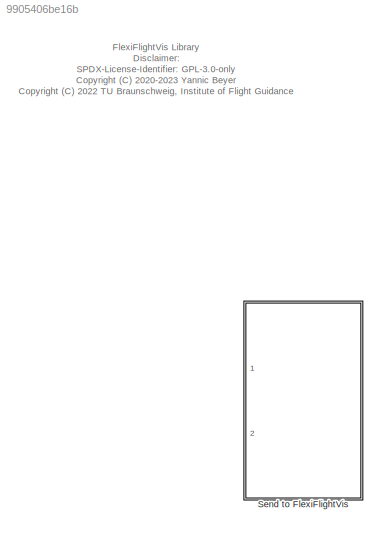
MODEL slx_9905406be16b
KIND library
CONFIG AbsTol = auto
CONFIG EnableMultiTasking = off
CONFIG FixedStep = auto
CONFIG MaxStep = auto
CONFIG MinStep = auto
CONFIG RelTol = 1e-3
CONFIG SampleTimeConstraint = Unconstrained
CONFIG Solver = VariableStepAuto
CONFIG SolverName = VariableStepAuto
CONFIG StartTime = 0.0
CONFIG StopTime = 10.0
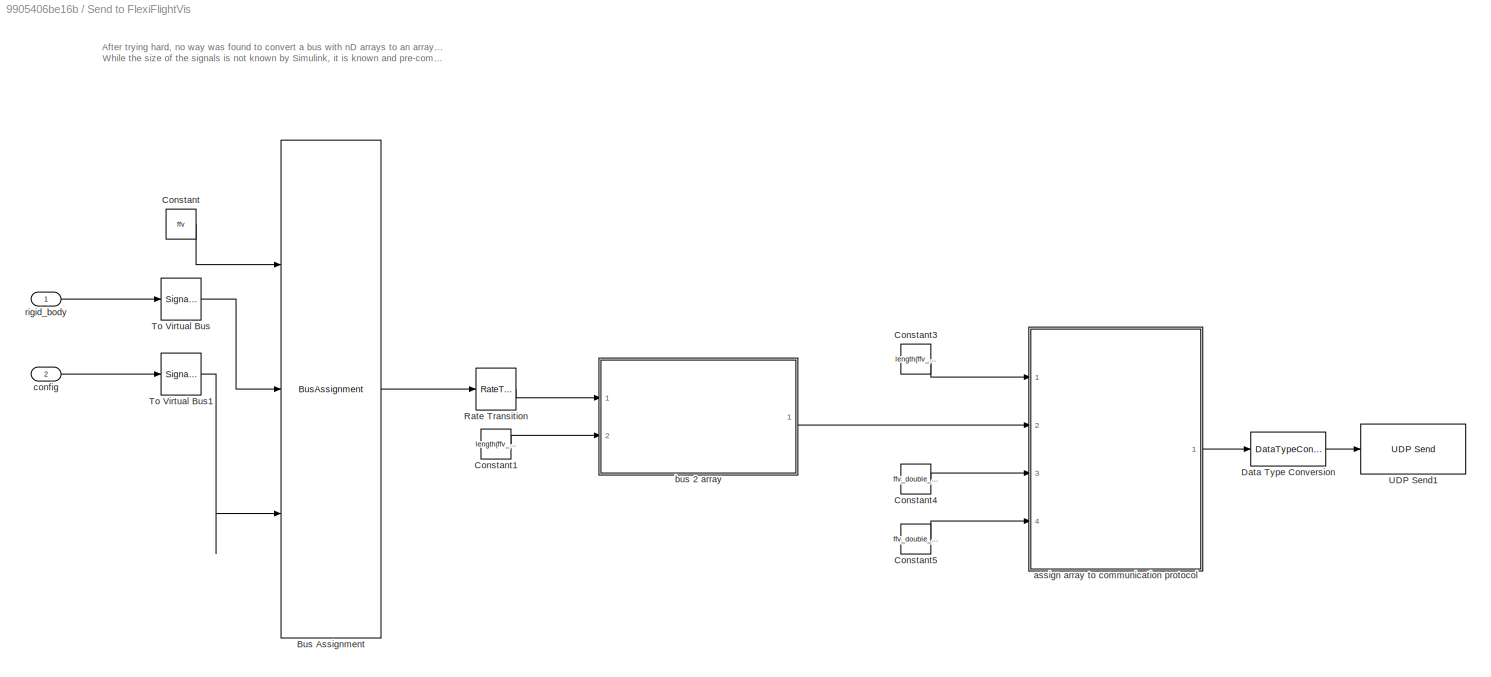
BLOCK [SubSystem] Send to FlexiFlightVis
  Ports = [2]
  RequestExecContextInheritance = off
BLOCK [BusAssignment] Send to FlexiFlightVis/Bus Assignment
  AssignedSignals = rigid_body,config
  Ports = [3, 1]
BLOCK [Constant] Send to FlexiFlightVis/Constant
  OutDataTypeStr = Bus: ffv_bus
  Value = ffv
BLOCK [Constant] Send to FlexiFlightVis/Constant1
  Value = length(ffv_double_array)-length(ffv_double_idx)
BLOCK [Constant] Send to FlexiFlightVis/Constant3
  Value = length(ffv_double_array)
BLOCK [Constant] Send to FlexiFlightVis/Constant4
  Value = ffv_double_array
BLOCK [Constant] Send to FlexiFlightVis/Constant5
  Value = ffv_double_idx
BLOCK [DataTypeConversion] Send to FlexiFlightVis/Data Type Conversion
  OutDataTypeStr = single
  RndMeth = Floor
  SaturateOnIntegerOverflow = off
BLOCK [RateTransition] Send to FlexiFlightVis/Rate Transition
  OutPortSampleTime = sample_time
BLOCK [SignalConversion] Send to FlexiFlightVis/To Virtual Bus
  ConversionOutput = Virtual bus
  OverrideOpt = off
BLOCK [SignalConversion] Send to FlexiFlightVis/To Virtual Bus1
  ConversionOutput = Virtual bus
  OverrideOpt = off
BLOCK [Reference] Send to FlexiFlightVis/UDP Send1  REF=dspnetwork/UDP Send
  Ports = [1]
  SourceBlock = dspnetwork/UDP Send
  SourceProductBaseCode = SL
  SourceProductName = Simulink
  SourceType = UDP Send
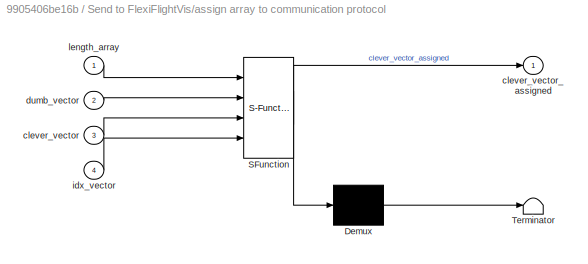
BLOCK [SubSystem] Send to FlexiFlightVis/assign array to communication protocol
  ErrorFcn = Stateflow.Translate.translate
  PermitHierarchicalResolution = ExplicitOnly
  Ports = [4, 1]
  RequestExecContextInheritance = off
  SFBlockType = MATLAB Function
  TreatAsAtomicUnit = on
BLOCK [Demux] Send to FlexiFlightVis/assign array to communication protocol/ Demux 
  Outputs = 1
  Ports = [1, 1]
BLOCK [S-Function] Send to FlexiFlightVis/assign array to communication protocol/ SFunction 
  EnableBusSupport = off
  FunctionName = sf_sfun
  PortCounts = [4 2]
  Ports = [4, 2]
  SFcnIsStateOwnerBlock = off
  SFunctionDeploymentMode = off
  Tag = Stateflow S-Function flexiFlightVis_lib 2
BLOCK [Terminator] Send to FlexiFlightVis/assign array to communication protocol/ Terminator 
BLOCK [Inport] Send to FlexiFlightVis/assign array to communication protocol/clever_vector
  IconDisplay = Port number
  Port = 3
BLOCK [Outport] Send to FlexiFlightVis/assign array to communication protocol/clever_vector_assigned
  IconDisplay = Port number
BLOCK [Inport] Send to FlexiFlightVis/assign array to communication protocol/dumb_vector
  IconDisplay = Port number
  Port = 2
BLOCK [Inport] Send to FlexiFlightVis/assign array to communication protocol/idx_vector
  IconDisplay = Port number
  Port = 4
BLOCK [Inport] Send to FlexiFlightVis/assign array to communication protocol/length_array
  IconDisplay = Port number
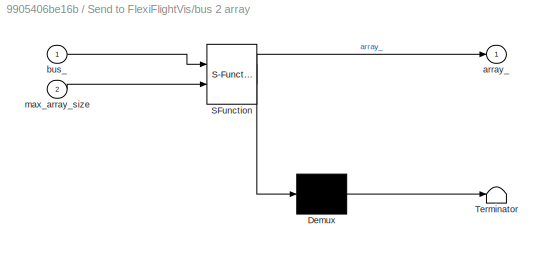
BLOCK [SubSystem] Send to FlexiFlightVis/bus 2 array
  ErrorFcn = Stateflow.Translate.translate
  PermitHierarchicalResolution = ExplicitOnly
  Ports = [2, 1]
  RequestExecContextInheritance = off
  SFBlockType = MATLAB Function
  TreatAsAtomicUnit = on
BLOCK [Demux] Send to FlexiFlightVis/bus 2 array/ Demux 
  Outputs = 1
  Ports = [1, 1]
BLOCK [S-Function] Send to FlexiFlightVis/bus 2 array/ SFunction 
  EnableBusSupport = off
  FunctionName = sf_sfun
  PortCounts = [2 2]
  Ports = [2, 2]
  SFcnIsStateOwnerBlock = off
  SFunctionDeploymentMode = off
  Tag = Stateflow S-Function flexiFlightVis_lib 3
BLOCK [Terminator] Send to FlexiFlightVis/bus 2 array/ Terminator 
BLOCK [Outport] Send to FlexiFlightVis/bus 2 array/array_
  IconDisplay = Port number
BLOCK [Inport] Send to FlexiFlightVis/bus 2 array/bus_
  IconDisplay = Port number
BLOCK [Inport] Send to FlexiFlightVis/bus 2 array/max_array_size
  IconDisplay = Port number
  Port = 2
BLOCK [Inport] Send to FlexiFlightVis/config
  IconDisplay = Port number
  Port = 2
BLOCK [Inport] Send to FlexiFlightVis/rigid_body
  IconDisplay = Port number
ANNOTATION (root): FlexiFlightVis Library Disclaimer: SPDX-License-Identifier: GPL-3.0-only <copyright redacted>
ANNOTATION Send to FlexiFlightVis: After trying hard, no way was found to convert a bus with nD arrays to an array/vector of doubles without using variable size signals. While the size of the signals is not known by Simulink, it is known and pre-computed by the user and defined as maximum size.
CHART Send to FlexiFlightVis/assign array to communication protocol states=1 transitions=1
  STATE_LABEL 'eML_blk_kernel()'
  STATE_LABEL "SCRIPT:\nfunction clever_vector_assigned = fcn(length_array, dumb_vector,clever_vector, idx_vector)\n\nclever_vector_row = clever_vector(:)';\nidx_vector_row = idx_vector(:)';\n\nclever_out = clever_vector_row;\n\nclever_out(idx_vector_row) = clever_vector_row(idx_vector_row);\n% inverse index\nidx_2 = setdiff(1:length(clever_out),idx_vector_row);\nclever_out(idx_2) = dumb_vector(1:length(idx_2));\nclever_vec...<+44ch>"
CHART Send to FlexiFlightVis/bus 2 array states=1 transitions=1
  STATE_LABEL 'eML_blk_kernel()'
  STATE_LABEL 'SCRIPT:\nfunction array_ = fcn(bus_,max_array_size)\n\narray_ = bus2array(bus_,max_array_size);'
